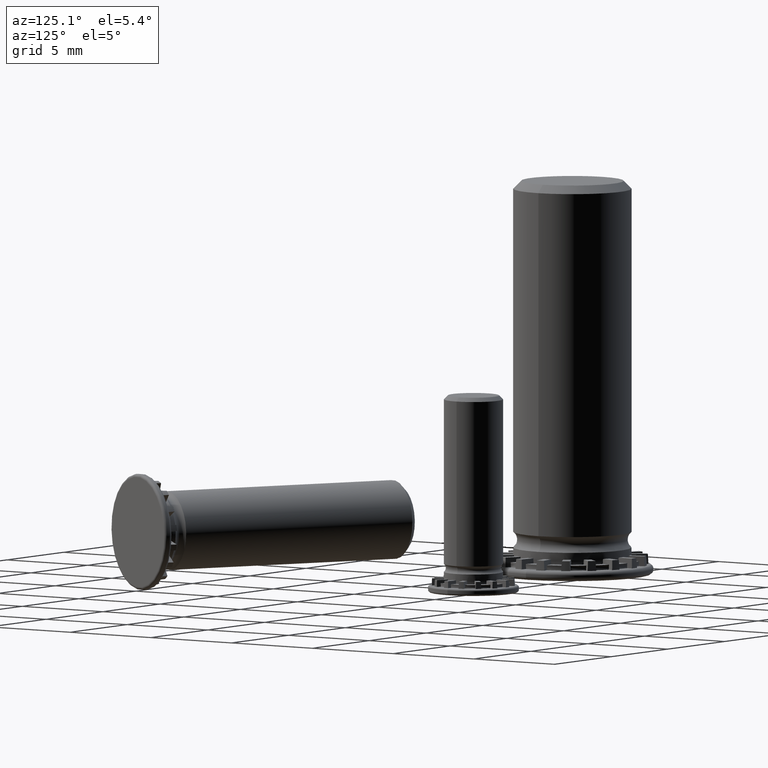
[diagram: clean part render]
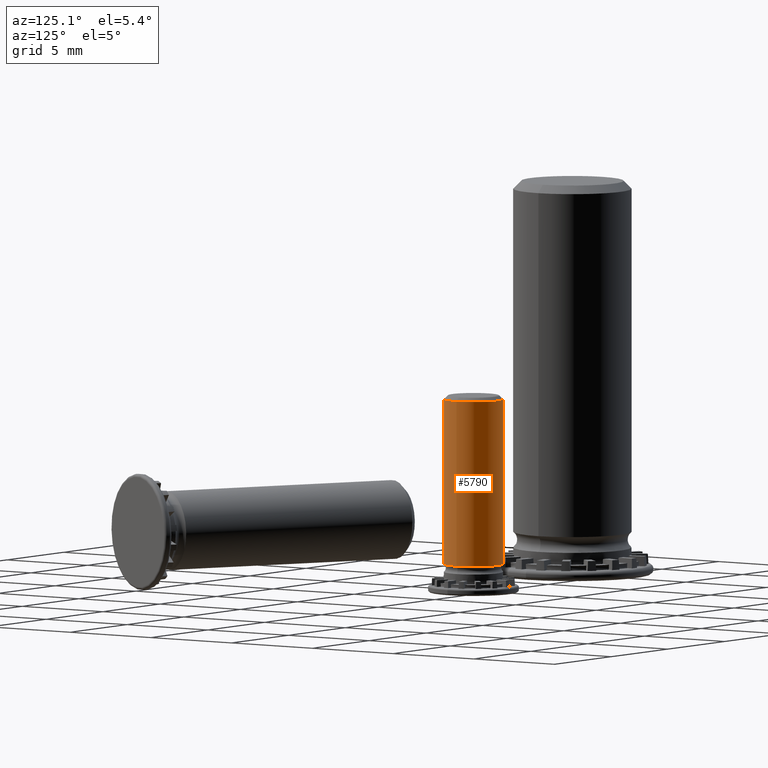
[diagram: same view with one face highlighted and labeled with its STEP entity id]
A machine part, auxiliary view. The second image highlights one B-rep face of the part: STEP entity #5790.
In plain terms, the highlighted cylindrical surface (bore or boss wall) has radius 1.5 mm, axis along (-0, 0, -1).
Its self-contained STEP definition (entity closure, byte-faithful):
#49=FACE_BOUND('',#934,.T.);
#87=CYLINDRICAL_SURFACE('',#6278,1.5);
#223=CIRCLE('',#6276,1.5);
#224=CIRCLE('',#6279,1.5);
#601=FACE_OUTER_BOUND('',#933,.T.);
#933=EDGE_LOOP('',(#4124));
#934=EDGE_LOOP('',(#4125));
#2274=VERTEX_POINT('',#9522);
#2275=VERTEX_POINT('',#9526);
#2988=EDGE_CURVE('',#2274,#2274,#223,.T.);
#2989=EDGE_CURVE('',#2275,#2275,#224,.T.);
#4124=ORIENTED_EDGE('',*,*,#2988,.F.);
#4125=ORIENTED_EDGE('',*,*,#2989,.F.);
#5790=ADVANCED_FACE('',(#601,#49),#87,.T.);
#6276=AXIS2_PLACEMENT_3D('',#9523,#7474,#7475);
#6278=AXIS2_PLACEMENT_3D('',#9525,#7478,#7479);
#6279=AXIS2_PLACEMENT_3D('',#9527,#7480,#7481);
#7474=DIRECTION('center_axis',(2.77555756156289E-16,0.,1.));
#7475=DIRECTION('ref_axis',(1.,0.,-2.77555756156289E-16));
#7478=DIRECTION('center_axis',(-2.77555756156289E-16,0.,-1.));
#7479=DIRECTION('ref_axis',(-1.,0.,2.77555756156289E-16));
#7480=DIRECTION('center_axis',(-2.77555756156289E-16,0.,-1.));
#7481=DIRECTION('ref_axis',(-1.,0.,2.77555756156289E-16));
#9522=CARTESIAN_POINT('',(1.5,-1.83697019872103E-16,9.8));
#9523=CARTESIAN_POINT('Origin',(2.72004641033163E-15,0.,9.8));
#9525=CARTESIAN_POINT('Origin',(4.89192020225459E-16,0.,1.7625));
#9526=CARTESIAN_POINT('',(1.5,-1.83697019872103E-16,1.425));
#9527=CARTESIAN_POINT('Origin',(3.95516952522712E-16,0.,1.425));